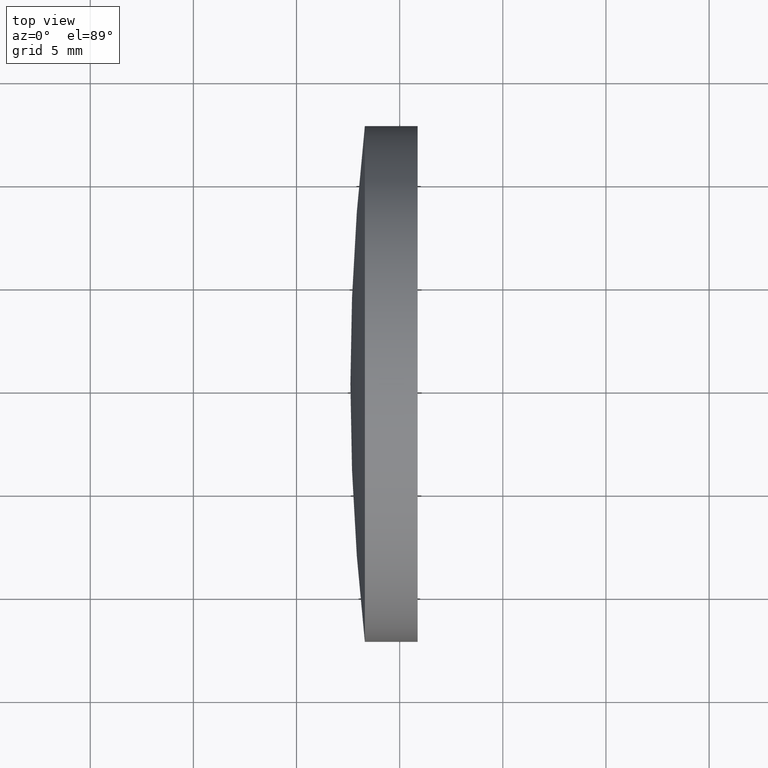
[diagram: clean part render]
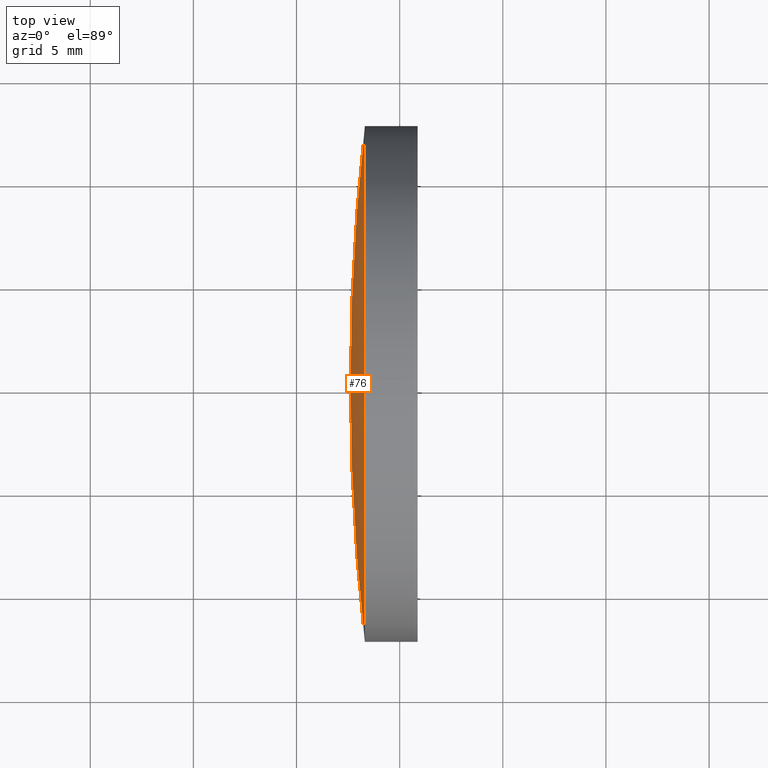
[diagram: same view with one face highlighted and labeled with its STEP entity id]
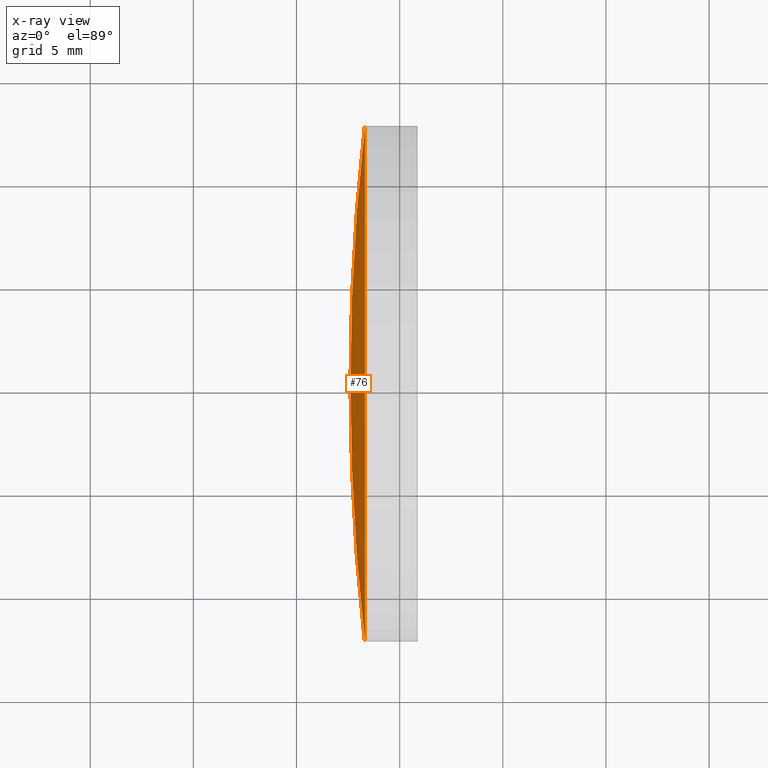
[diagram: x-ray of the same camera — body ghosted, the highlighted face saturated]
A machine part, top view. The second image highlights one B-rep face of the part: STEP entity #76.
The next image is the same camera in x-ray: the body ghosted, the highlighted face saturated — about 0% of this face is hidden behind the body in this view.
In plain terms, the highlighted spherical surface has radius 112 mm.
Its self-contained STEP definition (entity closure, byte-faithful):
#3 = DIRECTION ( 'NONE',  ( -8.496118506040342700E-032, 1.224646799147353200E-016, -1.000000000000000000 ) ) ;
#5 = CIRCLE ( 'NONE', #103, 12.49999999999997700 ) ;
#8 = CARTESIAN_POINT ( 'NONE',  ( 234.6121936984948200, 65.21684047094031200, 0.0000000000000000000 ) ) ;
#9 = VERTEX_POINT ( 'NONE', #184 ) ;
#15 = CARTESIAN_POINT ( 'NONE',  ( 123.3119241570422400, 65.21684047094032600, 0.0000000000000000000 ) ) ;
#20 = CIRCLE ( 'NONE', #181, 112.0000000000000100 ) ;
#39 = SPHERICAL_SURFACE ( 'NONE', #52, 111.9999999999999900 ) ;
#47 = DIRECTION ( 'NONE',  ( -0.0000000000000000000, 0.0000000000000000000, 1.000000000000000000 ) ) ;
#52 = AXIS2_PLACEMENT_3D ( 'NONE', #91, #186, #156 ) ;
#53 = CARTESIAN_POINT ( 'NONE',  ( 123.3119241570422600, 52.71684047094034800, 0.0000000000000000000 ) ) ;
#54 = DIRECTION ( 'NONE',  ( -1.000000000000000000, -6.937607244762875000E-016, -0.0000000000000000000 ) ) ;
#72 = EDGE_CURVE ( 'NONE', #9, #162, #20, .T. ) ;
#76 = ADVANCED_FACE ( 'NONE', ( #83 ), #39, .T. ) ;
#83 = FACE_OUTER_BOUND ( 'NONE', #107, .T. ) ;
#87 = ORIENTED_EDGE ( 'NONE', *, *, #72, .T. ) ;
#91 = CARTESIAN_POINT ( 'NONE',  ( 234.6121936984948200, 65.21684047094031200, 0.0000000000000000000 ) ) ;
#99 = CIRCLE ( 'NONE', #133, 111.9999999999999900 ) ;
#103 = AXIS2_PLACEMENT_3D ( 'NONE', #15, #54, #182 ) ;
#105 = DIRECTION ( 'NONE',  ( 1.000000000000000000, 0.0000000000000000000, 0.0000000000000000000 ) ) ;
#107 = EDGE_LOOP ( 'NONE', ( #124, #157, #87 ) ) ;
#111 = CARTESIAN_POINT ( 'NONE',  ( 234.6121936984948200, 65.21684047094031200, 0.0000000000000000000 ) ) ;
#124 = ORIENTED_EDGE ( 'NONE', *, *, #185, .F. ) ;
#133 = AXIS2_PLACEMENT_3D ( 'NONE', #111, #3, #145 ) ;
#142 = CARTESIAN_POINT ( 'NONE',  ( 122.6121936984948200, 65.21684047094024100, 0.0000000000000000000 ) ) ;
#145 = DIRECTION ( 'NONE',  ( 0.0000000000000000000, 1.000000000000000000, 1.224646799147353200E-016 ) ) ;
#156 = DIRECTION ( 'NONE',  ( -7.434529182757745400E-016, 1.000000000000000000, 0.0000000000000000000 ) ) ;
#157 = ORIENTED_EDGE ( 'NONE', *, *, #161, .T. ) ;
#161 = EDGE_CURVE ( 'NONE', #177, #9, #5, .T. ) ;
#162 = VERTEX_POINT ( 'NONE', #142 ) ;
#177 = VERTEX_POINT ( 'NONE', #53 ) ;
#181 = AXIS2_PLACEMENT_3D ( 'NONE', #8, #47, #105 ) ;
#182 = DIRECTION ( 'NONE',  ( 1.110223024625158500E-015, -1.000000000000000000, 0.0000000000000000000 ) ) ;
#184 = CARTESIAN_POINT ( 'NONE',  ( 123.3119241570422300, 77.71684047094031200, 1.530808498934189700E-015 ) ) ;
#185 = EDGE_CURVE ( 'NONE', #177, #162, #99, .T. ) ;
#186 = DIRECTION ( 'NONE',  ( -0.0000000000000000000, 0.0000000000000000000, -1.000000000000000000 ) ) ;